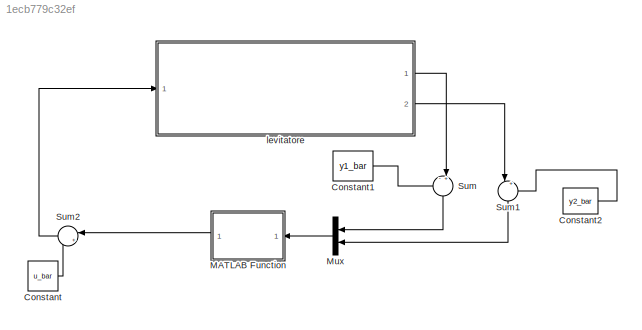
MODEL slx_1ecb779c32ef
KIND model
CONFIG AbsTol = auto
CONFIG EnableMultiTasking = on
CONFIG FixedStep = auto
CONFIG MaxStep = auto
CONFIG MinStep = auto
CONFIG RelTol = 1e-4
CONFIG SampleTimeConstraint = Unconstrained
CONFIG SolverName = ode15s
CONFIG StartTime = 0.0
CONFIG StopTime = 30
BLOCK [Constant] Constant
  Value = u_bar
BLOCK [Constant] Constant1
  Value = y1_bar
BLOCK [Constant] Constant2
  Value = y2_bar
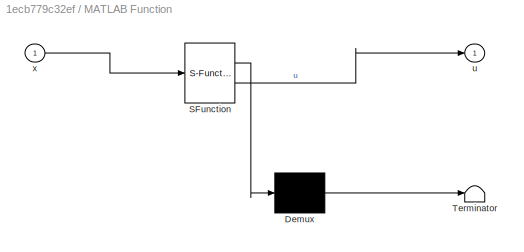
BLOCK [SubSystem] MATLAB Function
  ErrorFcn = Stateflow.Translate.translate
  NameLocation = top
  PermitHierarchicalResolution = ExplicitOnly
  Ports = [1, 1]
  RequestExecContextInheritance = off
  SFBlockType = MATLAB Function
  TreatAsAtomicUnit = on
BLOCK [Demux] MATLAB Function/ Demux 
  Outputs = 1
  Ports = [1, 1]
BLOCK [S-Function] MATLAB Function/ SFunction 
  EnableBusSupport = off
  FunctionName = sf_sfun
  PortCounts = [1 2]
  Ports = [1, 2]
  SFcnIsStateOwnerBlock = off
  SFunctionDeploymentMode = off
  Tag = Stateflow S-Function 2
BLOCK [Terminator] MATLAB Function/ Terminator 
BLOCK [Outport] MATLAB Function/u
  VectorParamsAs1DForOutWhenUnconnected = off
BLOCK [Inport] MATLAB Function/x
BLOCK [Mux] Mux
  DisplayOption = bar
  Inputs = 2
  NameLocation = top
  Ports = [2, 1]
BLOCK [Sum] Sum
  Inputs = -+|
  NameLocation = left
  Ports = [2, 1]
BLOCK [Sum] Sum1
  Inputs = |+-
  NameLocation = left
  Ports = [2, 1]
BLOCK [Sum] Sum2
  Inputs = |++
  NameLocation = top
  Ports = [2, 1]
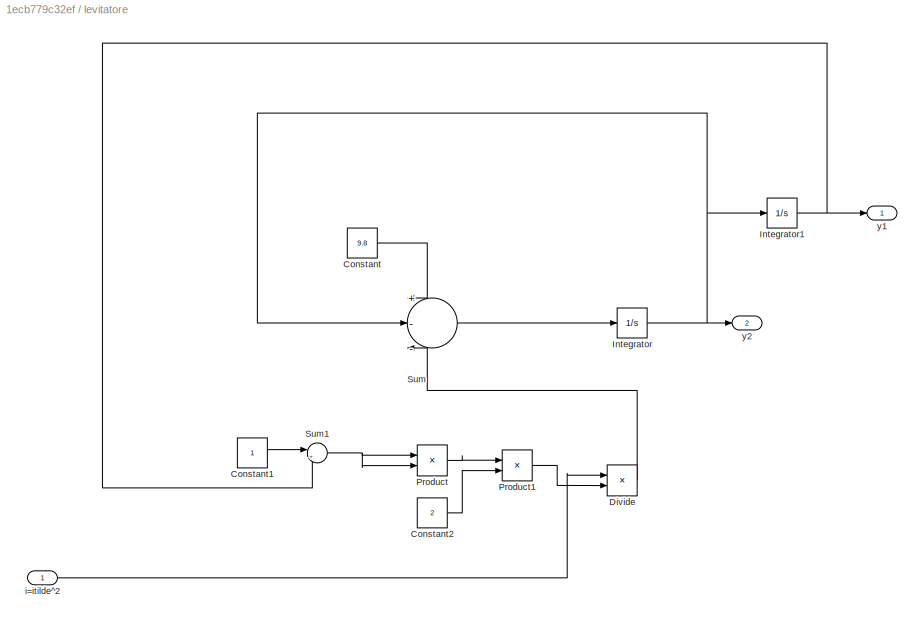
BLOCK [SubSystem] levitatore
  Description = Magnetic Levitation System.\nThe input is the squared current. The outputs are the position (y1) and the velocity (y2).
  Ports = [1, 2]
  RequestExecContextInheritance = off
BLOCK [Constant] levitatore/Constant
  Value = 9.8
BLOCK [Constant] levitatore/Constant1
BLOCK [Constant] levitatore/Constant2
  Value = 2
BLOCK [Product] levitatore/Divide
  Inputs = */
  Ports = [2, 1]
BLOCK [Integrator] levitatore/Integrator
  InitialCondition = y2_0
  Ports = [1, 1]
BLOCK [Integrator] levitatore/Integrator1
  InitialCondition = y1_0
  Ports = [1, 1]
BLOCK [Product] levitatore/Product
  Ports = [2, 1]
  RndMeth = Zero
BLOCK [Product] levitatore/Product1
  Ports = [2, 1]
  RndMeth = Zero
BLOCK [Sum] levitatore/Sum
  Inputs = +--
  Ports = [3, 1]
BLOCK [Sum] levitatore/Sum1
  Inputs = |++
  Ports = [2, 1]
BLOCK [Inport] levitatore/i=itilde^2
BLOCK [Outport] levitatore/y1
BLOCK [Outport] levitatore/y2
  Port = 2
LINE Constant1:1 -> Sum:1
LINE Constant2:1 -> Sum1:2
LINE Constant:1 -> Sum2:2
LINE MATLAB Function:1 -> Sum2:1
LINE Mux:1 -> MATLAB Function:1
LINE Sum1:1 -> Mux:2
LINE Sum2:1 -> levitatore:1
LINE Sum:1 -> Mux:1
LINE levitatore/Constant1:1 -> levitatore/Sum1:1
LINE levitatore/Constant2:1 -> levitatore/Product1:2
LINE levitatore/Constant:1 -> levitatore/Sum:1
LINE levitatore/Divide:1 -> levitatore/Sum:3
NET levitatore/Integrator1:1 -> levitatore/Sum1:2, levitatore/y1:1
NET levitatore/Integrator:1 -> levitatore/Integrator1:1, levitatore/Sum:2, levitatore/y2:1
LINE levitatore/Product1:1 -> levitatore/Divide:2
LINE levitatore/Product:1 -> levitatore/Product1:1
NET levitatore/Sum1:1 -> levitatore/Product:1, levitatore/Product:2
LINE levitatore/Sum:1 -> levitatore/Integrator:1
LINE levitatore/i=itilde^2:1 -> levitatore/Divide:1
LINE levitatore:1 -> Sum:2
LINE levitatore:2 -> Sum1:1
note: NET lines group one-source signal fan-out (src -> all destinations, sorted); 1:1 wires keep LINE
CHART MATLAB Function states=1 transitions=1
  STATE_LABEL 'eML_blk_kernel()'
  STATE_LABEL 'SCRIPT:\nfunction u = fcn(x)\nK=2;\ng=9.81;\n\nu = 2*(2+x(1))^2*((1+K)*x(1)+K*x(2)+g)-8*g; %expression to manipulate the state\n'
CHART  states=0 transitions=0
